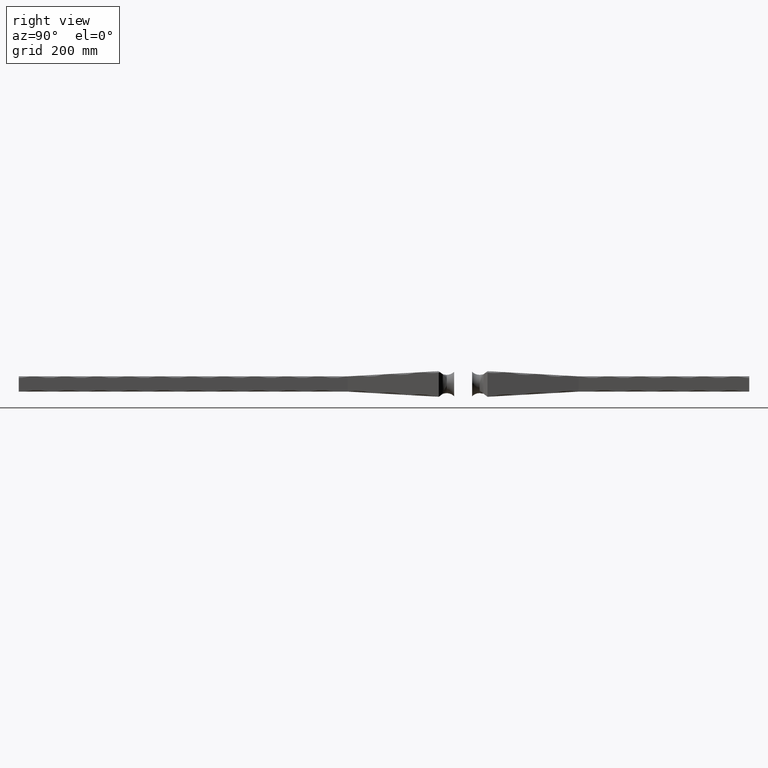
[diagram: clean part render]
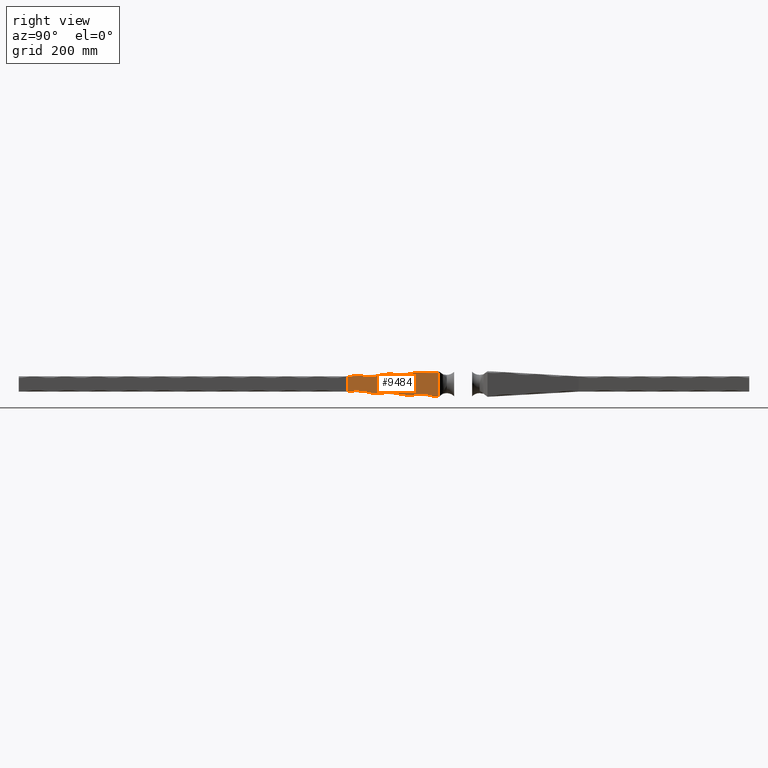
[diagram: same view with one face highlighted and labeled with its STEP entity id]
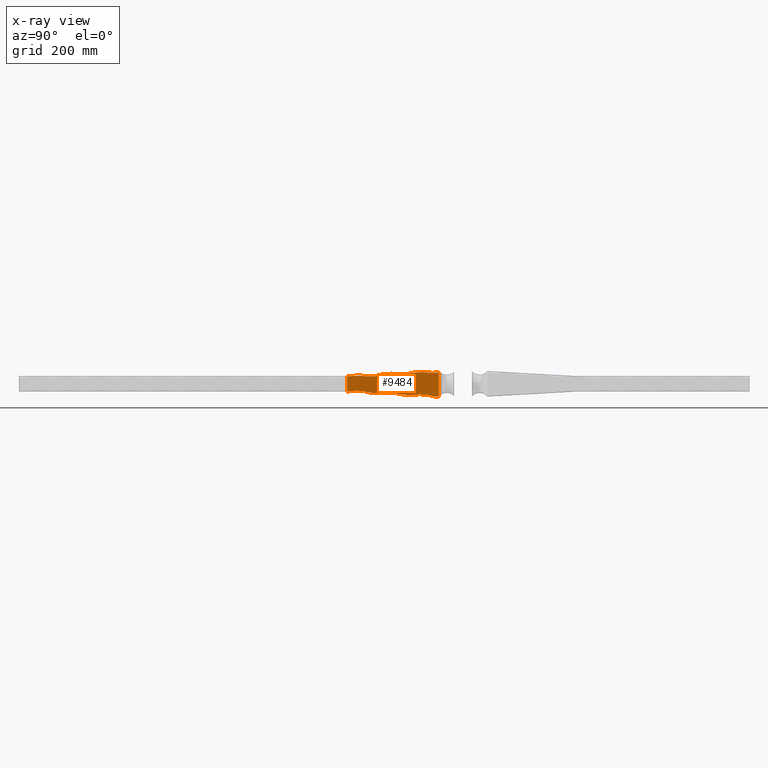
[diagram: x-ray of the same camera — body ghosted, the highlighted face saturated]
A machine part, right view. The second image highlights one B-rep face of the part: STEP entity #9484.
The next image is the same camera in x-ray: the body ghosted, the highlighted face saturated — about 0% of this face is hidden behind the body in this view.
In plain terms, the highlighted planar face has unit normal (0.9984, -0.0566, 0).
Its self-contained STEP definition (entity closure, byte-faithful):
#17 = EDGE_CURVE ( 'NONE', #9229, #15707, #7096, .T. ) ;
#271 = CARTESIAN_POINT ( 'NONE',  ( 20.99999999999999645, -40.00000000000000000, -21.00000000000000355 ) ) ;
#525 = VERTEX_POINT ( 'NONE', #1405 ) ;
#614 = DIRECTION ( 'NONE',  ( -0.9983983008393586545, 0.05657590371423031061, -0.000000000000000000 ) ) ;
#938 = CARTESIAN_POINT ( 'NONE',  ( 20.63392287116373680, -46.46018462652290282, -20.63392287116370838 ) ) ;
#1257 = ORIENTED_EDGE ( 'NONE', *, *, #17, .F. ) ;
#1341 = CARTESIAN_POINT ( 'NONE',  ( 13.37804836455217483, -174.5050288608442202, -92.25398046785012696 ) ) ;
#1383 = LINE ( 'NONE', #11667, #3136 ) ;
#1405 = CARTESIAN_POINT ( 'NONE',  ( 12.50000000000000000, -190.0000000000000000, -12.50000000000000000 ) ) ;
#1468 = EDGE_CURVE ( 'NONE', #525, #11879, #9528, .T. ) ;
#1495 = VECTOR ( 'NONE', #12419, 999.9999999999998863 ) ;
#1871 = VERTEX_POINT ( 'NONE', #8192 ) ;
#1882 = DIRECTION ( 'NONE',  ( -0.05648557549419240542, -0.9968042734269250138, 0.05648557549419244705 ) ) ;
#1965 = DIRECTION ( 'NONE',  ( 0.000000000000000000, 0.000000000000000000, 1.000000000000000000 ) ) ;
#2080 = VERTEX_POINT ( 'NONE', #13747 ) ;
#2120 = EDGE_CURVE ( 'NONE', #7830, #2284, #3128, .T. ) ;
#2284 = VERTEX_POINT ( 'NONE', #2584 ) ;
#2307 = CARTESIAN_POINT ( 'NONE',  ( 20.38225972583209966, -50.90129895590546028, 99.25819182912981375 ) ) ;
#2421 = ORIENTED_EDGE ( 'NONE', *, *, #4159, .T. ) ;
#2446 = ORIENTED_EDGE ( 'NONE', *, *, #2120, .T. ) ;
#2584 = CARTESIAN_POINT ( 'NONE',  ( 13.62971150988385638, -170.0639145314615917, 13.62971150988382085 ) ) ;
#2597 = DIRECTION ( 'NONE',  ( -0.9983983008393586545, 0.05657590371423031061, -0.000000000000000000 ) ) ;
#2906 = CIRCLE ( 'NONE', #12090, 81.24999999999994316 ) ;
#2941 = EDGE_CURVE ( 'NONE', #14481, #7215, #12194, .T. ) ;
#3059 = CIRCLE ( 'NONE', #5254, 81.24999999999987210 ) ;
#3096 = CIRCLE ( 'NONE', #15465, 81.24999999999987210 ) ;
#3123 = DIRECTION ( 'NONE',  ( -0.05648557549419240542, -0.9968042734269250138, 0.05648557549419244705 ) ) ;
#3128 = CIRCLE ( 'NONE', #4849, 81.24999999999987210 ) ;
#3136 = VECTOR ( 'NONE', #4225, 999.9999999999998863 ) ;
#3261 = ORIENTED_EDGE ( 'NONE', *, *, #11090, .T. ) ;
#3332 = ORIENTED_EDGE ( 'NONE', *, *, #10167, .T. ) ;
#3423 = ORIENTED_EDGE ( 'NONE', *, *, #1468, .F. ) ;
#3578 = VERTEX_POINT ( 'NONE', #5430 ) ;
#3584 = ORIENTED_EDGE ( 'NONE', *, *, #14225, .T. ) ;
#3602 = ORIENTED_EDGE ( 'NONE', *, *, #8703, .T. ) ;
#3779 = CARTESIAN_POINT ( 'NONE',  ( 20.99999999999998224, -40.00000000000000000, 20.99999999999999645 ) ) ;
#3811 = DIRECTION ( 'NONE',  ( -0.05657590371423029674, -0.9983983008393584324, 0.000000000000000000 ) ) ;
#3822 = LINE ( 'NONE', #10530, #15014 ) ;
#4159 = EDGE_CURVE ( 'NONE', #525, #7215, #2906, .T. ) ;
#4220 = VERTEX_POINT ( 'NONE', #13036 ) ;
#4225 = DIRECTION ( 'NONE',  ( -0.05648557549419228746, -0.9968042734269250138, -0.05648557549419240542 ) ) ;
#4330 = CARTESIAN_POINT ( 'NONE',  ( 16.31529829025019041, -122.6712066426441083, -95.19123039354813898 ) ) ;
#4594 = DIRECTION ( 'NONE',  ( -0.9983983008393586545, 0.05657590371423031061, -0.000000000000000000 ) ) ;
#4849 = AXIS2_PLACEMENT_3D ( 'NONE', #5028, #11220, #14936 ) ;
#4875 = CARTESIAN_POINT ( 'NONE',  ( 20.99999999999998224, -40.00000000000000000, 20.99999999999999645 ) ) ;
#4982 = DIRECTION ( 'NONE',  ( -0.9983983008393586545, 0.05657590371423031061, -0.000000000000000000 ) ) ;
#5028 = CARTESIAN_POINT ( 'NONE',  ( 14.50775987443602411, -154.5689433923056697, 93.38369197773393182 ) ) ;
#5071 = CARTESIAN_POINT ( 'NONE',  ( 23.19219395496682878, -1.314224324114786624, 0.000000000000000000 ) ) ;
#5148 = DIRECTION ( 'NONE',  ( -8.260587980841938780E-17, 0.000000000000000000, 1.000000000000000000 ) ) ;
#5217 = LINE ( 'NONE', #5252, #12548 ) ;
#5252 = CARTESIAN_POINT ( 'NONE',  ( 20.99999999999999645, -40.00000000000000000, -21.00000000000000355 ) ) ;
#5254 = AXIS2_PLACEMENT_3D ( 'NONE', #9332, #614, #9278 ) ;
#5430 = CARTESIAN_POINT ( 'NONE',  ( 17.69667294546572123, -98.29400684472300043, -17.69667294546570346 ) ) ;
#5655 = CARTESIAN_POINT ( 'NONE',  ( 20.99999999999999645, -40.00000000000000000, -21.00000000000000355 ) ) ;
#5854 = VECTOR ( 'NONE', #1965, 1000.000000000000000 ) ;
#5878 = DIRECTION ( 'NONE',  ( 0.05657590371423031755, 0.9983983008393584324, 7.173748774501015982E-15 ) ) ;
#6305 = ORIENTED_EDGE ( 'NONE', *, *, #8514, .T. ) ;
#6346 = EDGE_CURVE ( 'NONE', #10781, #7830, #1383, .T. ) ;
#6520 = ORIENTED_EDGE ( 'NONE', *, *, #2941, .F. ) ;
#6693 = VECTOR ( 'NONE', #1882, 999.9999999999998863 ) ;
#7096 = LINE ( 'NONE', #5655, #6693 ) ;
#7139 = DIRECTION ( 'NONE',  ( -0.05648557549419228746, -0.9968042734269250138, -0.05648557549419240542 ) ) ;
#7215 = VERTEX_POINT ( 'NONE', #13825 ) ;
#7597 = DIRECTION ( 'NONE',  ( 0.9983983008393585434, -0.05657590371423030368, 0.000000000000000000 ) ) ;
#7830 = VERTEX_POINT ( 'NONE', #11771 ) ;
#7839 = CARTESIAN_POINT ( 'NONE',  ( 21.00000000000008171, -40.00000000000000711, 18.74519549917312489 ) ) ;
#8002 = CARTESIAN_POINT ( 'NONE',  ( 12.50000000000000000, -190.0000000000000000, 12.50000000000000000 ) ) ;
#8192 = CARTESIAN_POINT ( 'NONE',  ( 18.82638445534958649, -78.35792137618449260, 18.82638445534947280 ) ) ;
#8193 = LINE ( 'NONE', #4875, #10653 ) ;
#8514 = EDGE_CURVE ( 'NONE', #10428, #2080, #3096, .T. ) ;
#8703 = EDGE_CURVE ( 'NONE', #9229, #10428, #5217, .T. ) ;
#8783 = DIRECTION ( 'NONE',  ( -0.05648557549419240542, -0.9968042734269250138, 0.05648557549419244705 ) ) ;
#9229 = VERTEX_POINT ( 'NONE', #13584 ) ;
#9278 = DIRECTION ( 'NONE',  ( 0.05657590371423027592, 0.9983983008393584324, 0.000000000000000000 ) ) ;
#9332 = CARTESIAN_POINT ( 'NONE',  ( 17.44500980013405922, -102.7351211741055721, 96.32094190343185858 ) ) ;
#9349 = ORIENTED_EDGE ( 'NONE', *, *, #10796, .F. ) ;
#9484 = ADVANCED_FACE ( 'NONE', ( #13149 ), #15033, .T. ) ;
#9528 = LINE ( 'NONE', #14204, #5854 ) ;
#10056 = VECTOR ( 'NONE', #8783, 999.9999999999998863 ) ;
#10167 = EDGE_CURVE ( 'NONE', #2284, #11879, #13313, .T. ) ;
#10216 = EDGE_LOOP ( 'NONE', ( #3602, #6305, #11000, #3261, #10546, #2446, #3332, #3423, #2421, #6520, #3584, #9349, #12074, #1257 ) ) ;
#10324 = AXIS2_PLACEMENT_3D ( 'NONE', #4330, #12955, #13173 ) ;
#10428 = VERTEX_POINT ( 'NONE', #7839 ) ;
#10530 = CARTESIAN_POINT ( 'NONE',  ( 20.99999999999999645, -40.00000000000000000, -21.00000000000000355 ) ) ;
#10546 = ORIENTED_EDGE ( 'NONE', *, *, #6346, .T. ) ;
#10636 = EDGE_CURVE ( 'NONE', #2080, #1871, #8193, .T. ) ;
#10653 = VECTOR ( 'NONE', #7139, 999.9999999999998863 ) ;
#10781 = VERTEX_POINT ( 'NONE', #14018 ) ;
#10796 = EDGE_CURVE ( 'NONE', #4220, #3578, #3822, .T. ) ;
#11000 = ORIENTED_EDGE ( 'NONE', *, *, #10636, .T. ) ;
#11090 = EDGE_CURVE ( 'NONE', #1871, #10781, #3059, .T. ) ;
#11094 = CIRCLE ( 'NONE', #10324, 81.24999999999994316 ) ;
#11220 = DIRECTION ( 'NONE',  ( -0.9983983008393586545, 0.05657590371423031061, -0.000000000000000000 ) ) ;
#11279 = DIRECTION ( 'NONE',  ( 0.05657590371423028980, 0.9983983008393584324, 0.000000000000000000 ) ) ;
#11667 = CARTESIAN_POINT ( 'NONE',  ( 20.99999999999998224, -40.00000000000000000, 20.99999999999999645 ) ) ;
#11771 = CARTESIAN_POINT ( 'NONE',  ( 15.88913452965155138, -130.1917435943846044, 15.88913452965153006 ) ) ;
#11879 = VERTEX_POINT ( 'NONE', #8002 ) ;
#12074 = ORIENTED_EDGE ( 'NONE', *, *, #12349, .T. ) ;
#12090 = AXIS2_PLACEMENT_3D ( 'NONE', #1341, #2597, #11279 ) ;
#12194 = LINE ( 'NONE', #271, #10056 ) ;
#12349 = EDGE_CURVE ( 'NONE', #4220, #15707, #12672, .T. ) ;
#12419 = DIRECTION ( 'NONE',  ( -0.05648557549419228746, -0.9968042734269250138, -0.05648557549419240542 ) ) ;
#12548 = VECTOR ( 'NONE', #5148, 1000.000000000000000 ) ;
#12672 = CIRCLE ( 'NONE', #13442, 81.24999999999994316 ) ;
#12955 = DIRECTION ( 'NONE',  ( -0.9983983008393586545, 0.05657590371423031061, -0.000000000000000000 ) ) ;
#13036 = CARTESIAN_POINT ( 'NONE',  ( 18.37449985139597786, -86.33235556360000373, -18.37449985139600273 ) ) ;
#13149 = FACE_OUTER_BOUND ( 'NONE', #10216, .T. ) ;
#13173 = DIRECTION ( 'NONE',  ( 0.05657590371423031755, 0.9983983008393584324, -1.708035422500242060E-15 ) ) ;
#13313 = LINE ( 'NONE', #3779, #1495 ) ;
#13321 = CARTESIAN_POINT ( 'NONE',  ( 19.25254821594820598, -70.83738442444401073, -98.12848031924615100 ) ) ;
#13442 = AXIS2_PLACEMENT_3D ( 'NONE', #13321, #4594, #5878 ) ;
#13584 = CARTESIAN_POINT ( 'NONE',  ( 20.99999999999999645, -40.00000000000000000, -21.00000000000000355 ) ) ;
#13747 = CARTESIAN_POINT ( 'NONE',  ( 19.50421136127995680, -66.39627009506087063, 19.50421136127985733 ) ) ;
#13825 = CARTESIAN_POINT ( 'NONE',  ( 14.75942301976770388, -150.1278290629230980, -14.75942301976769677 ) ) ;
#14018 = CARTESIAN_POINT ( 'NONE',  ( 16.56696143558191281, -118.2300923132611672, 16.56696143558185952 ) ) ;
#14204 = CARTESIAN_POINT ( 'NONE',  ( 12.50000000000000000, -190.0000000000000000, 12.50000000000000000 ) ) ;
#14225 = EDGE_CURVE ( 'NONE', #14481, #3578, #11094, .T. ) ;
#14481 = VERTEX_POINT ( 'NONE', #14913 ) ;
#14845 = DIRECTION ( 'NONE',  ( 0.05657590371423027592, 0.9983983008393584324, 0.000000000000000000 ) ) ;
#14913 = CARTESIAN_POINT ( 'NONE',  ( 15.43724992569798182, -138.1661777818000019, -15.43724992569800136 ) ) ;
#14936 = DIRECTION ( 'NONE',  ( 0.05657590371423029674, 0.9983983008393584324, 0.000000000000000000 ) ) ;
#15014 = VECTOR ( 'NONE', #3123, 999.9999999999998863 ) ;
#15033 = PLANE ( 'NONE',  #15581 ) ;
#15465 = AXIS2_PLACEMENT_3D ( 'NONE', #2307, #4982, #14845 ) ;
#15581 = AXIS2_PLACEMENT_3D ( 'NONE', #5071, #7597, #3811 ) ;
#15707 = VERTEX_POINT ( 'NONE', #938 ) ;